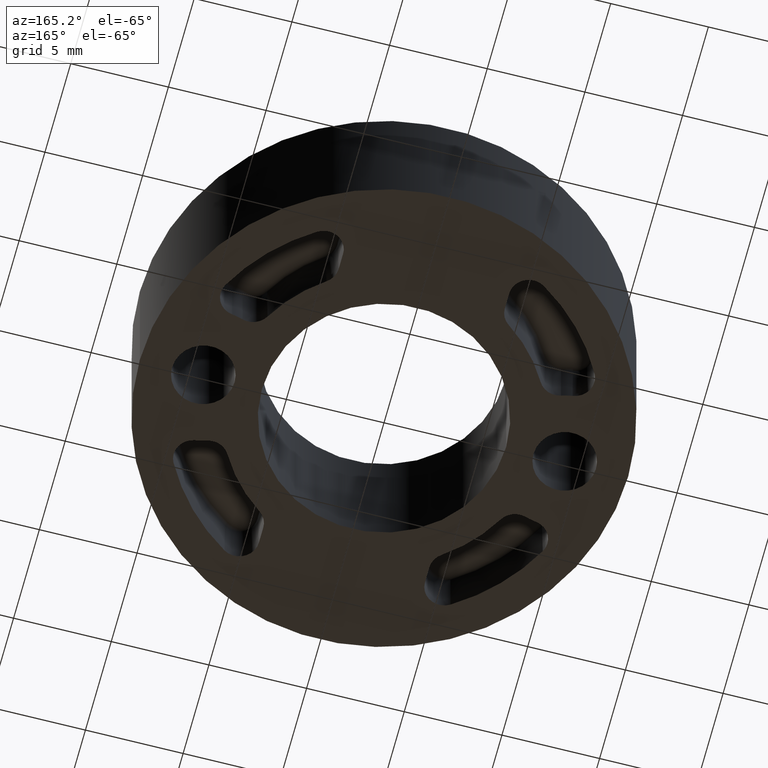
[diagram: clean part render]
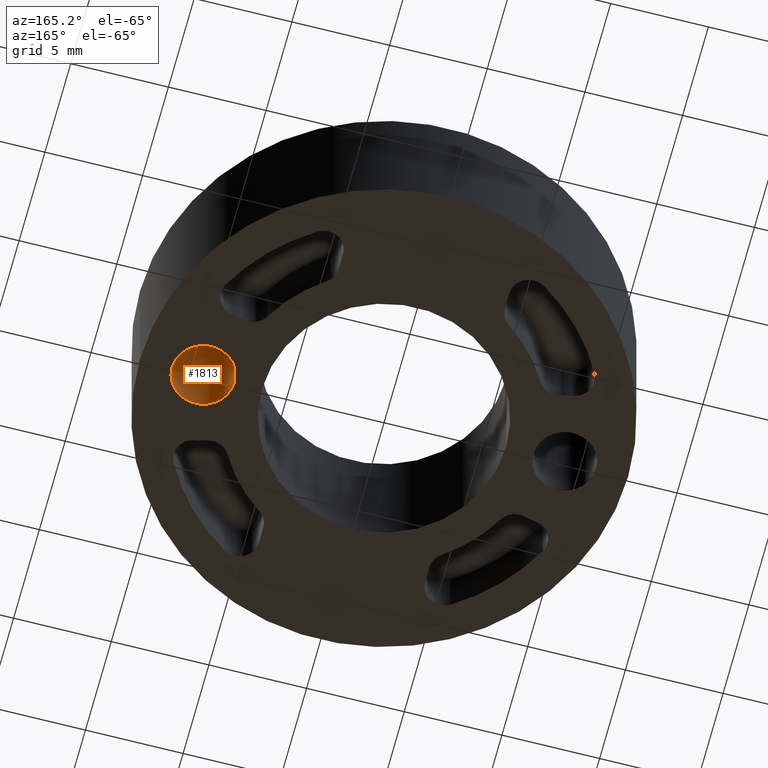
[diagram: same view with one face highlighted and labeled with its STEP entity id]
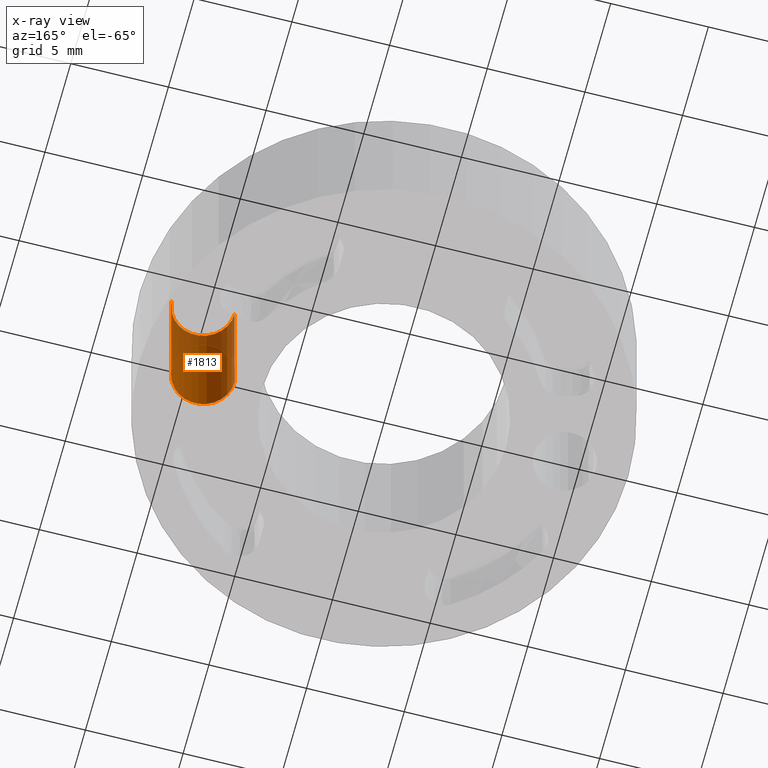
[diagram: x-ray of the same camera — body ghosted, the highlighted face saturated]
A machine part, auxiliary view. The second image highlights one B-rep face of the part: STEP entity #1813.
The next image is the same camera in x-ray: the body ghosted, the highlighted face saturated — about 30% of this face is hidden behind the body in this view.
In plain terms, the highlighted cylindrical surface (edge-blend (fillet) strip) has radius 1.6 mm, axis along (-0, 0, 1).
Its self-contained STEP definition (entity closure, byte-faithful):
#14 = DIRECTION ( 'NONE',  ( -4.746415829343455000E-029, 1.143848312570467100E-029, 1.000000000000000000 ) ) ;
#15 = VECTOR ( 'NONE', #14, 1000.000000000000000 ) ;
#16 = CARTESIAN_POINT ( 'NONE',  ( 10.85000000000000100, -8.673617379883959500E-016, -7.594265326949536800E-029 ) ) ;
#17 = LINE ( 'NONE', #16, #15 ) ;
#19 = CARTESIAN_POINT ( 'NONE',  ( 10.85000000000000100, -8.673617379883295900E-016, 7.999999999999998200 ) ) ;
#20 = DIRECTION ( 'NONE',  ( -1.000000000000000000, -7.703719777548935000E-030, 0.0000000000000000000 ) ) ;
#21 = DIRECTION ( 'NONE',  ( -4.746415829343455000E-029, 1.143848312570467100E-029, 1.000000000000000000 ) ) ;
#22 = CARTESIAN_POINT ( 'NONE',  ( 9.250000000000000000, 6.505213034913026600E-014, 7.999999999999998200 ) ) ;
#23 = AXIS2_PLACEMENT_3D ( 'NONE', #22, #21, #20 ) ;
#24 = CIRCLE ( 'NONE', #23, 1.600000000000001600 ) ;
#25 = CARTESIAN_POINT ( 'NONE',  ( 7.649999999999996800, -6.714247213768022000E-016, 7.999999999999998200 ) ) ;
#26 = DIRECTION ( 'NONE',  ( -4.746415829343455000E-029, 1.143848312570467100E-029, 1.000000000000000000 ) ) ;
#27 = VECTOR ( 'NONE', #26, 1000.000000000000000 ) ;
#28 = CARTESIAN_POINT ( 'NONE',  ( 7.649999999999997700, -6.714247213768305000E-016, 7.594265326949536800E-029 ) ) ;
#29 = LINE ( 'NONE', #28, #27 ) ;
#30 = CARTESIAN_POINT ( 'NONE',  ( 10.85000000000000100, -8.673617379883502000E-016, 7.594265326949536800E-029 ) ) ;
#31 = CARTESIAN_POINT ( 'NONE',  ( 7.649999999999996800, -6.714247213767846500E-016, -7.594265326949537900E-029 ) ) ;
#32 = DIRECTION ( 'NONE',  ( -1.000000000000000000, -4.694454239443882500E-030, 4.746415829343455600E-029 ) ) ;
#33 = DIRECTION ( 'NONE',  ( -4.746415829343455000E-029, 1.143848312570467100E-029, 1.000000000000000000 ) ) ;
#34 = CARTESIAN_POINT ( 'NONE',  ( 9.250000000000000000, -8.673617379884035500E-016, 0.0000000000000000000 ) ) ;
#35 = AXIS2_PLACEMENT_3D ( 'NONE', #34, #33, #32 ) ;
#36 = CIRCLE ( 'NONE', #35, 1.600000000000001600 ) ;
#1813 = ADVANCED_FACE ( 'NONE', ( #8909 ), #8899, .F. ) ;
#1814 = EDGE_LOOP ( 'NONE', ( #1815, #1819, #1822, #1825 ) ) ;
#1815 = ORIENTED_EDGE ( 'NONE', *, *, #1816, .F. ) ;
#1816 = EDGE_CURVE ( 'NONE', #1817, #1818, #36, .T. ) ;
#1817 = VERTEX_POINT ( 'NONE', #31 ) ;
#1818 = VERTEX_POINT ( 'NONE', #30 ) ;
#1819 = ORIENTED_EDGE ( 'NONE', *, *, #1820, .T. ) ;
#1820 = EDGE_CURVE ( 'NONE', #1817, #1821, #29, .T. ) ;
#1821 = VERTEX_POINT ( 'NONE', #25 ) ;
#1822 = ORIENTED_EDGE ( 'NONE', *, *, #1823, .T. ) ;
#1823 = EDGE_CURVE ( 'NONE', #1821, #1824, #24, .T. ) ;
#1824 = VERTEX_POINT ( 'NONE', #19 ) ;
#1825 = ORIENTED_EDGE ( 'NONE', *, *, #1826, .F. ) ;
#1826 = EDGE_CURVE ( 'NONE', #1818, #1824, #17, .T. ) ;
#8896 = DIRECTION ( 'NONE',  ( 1.000000000000000000, 4.754639550205980800E-030, -4.746415829343452800E-029 ) ) ;
#8897 = DIRECTION ( 'NONE',  ( -4.746415829343455000E-029, 1.143848312570467100E-029, 1.000000000000000000 ) ) ;
#8898 = AXIS2_PLACEMENT_3D ( 'NONE', #8907, #8897, #8896 ) ;
#8899 = CYLINDRICAL_SURFACE ( 'NONE', #8898, 1.600000000000002500 ) ;
#8907 = CARTESIAN_POINT ( 'NONE',  ( 9.250000000000000000, -8.673617379884035500E-016, 0.0000000000000000000 ) ) ;
#8909 = FACE_OUTER_BOUND ( 'NONE', #1814, .T. ) ;